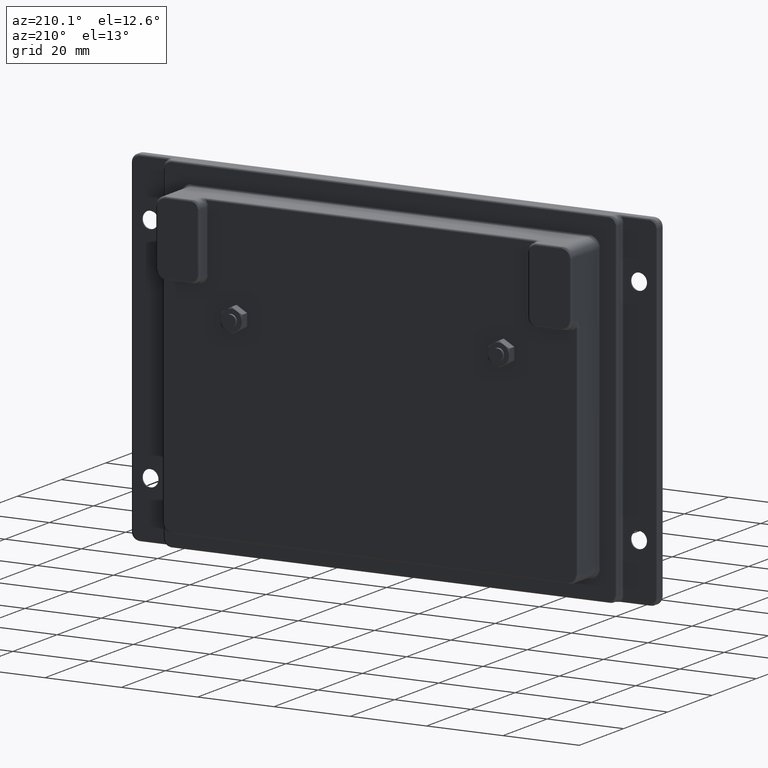
[diagram: clean part render]
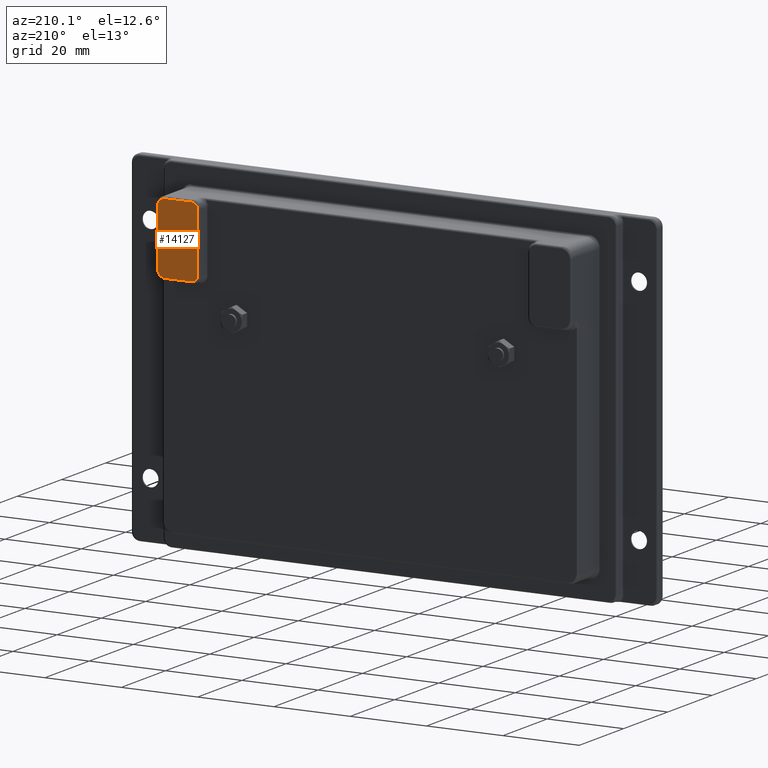
[diagram: same view with one face highlighted and labeled with its STEP entity id]
A machine part, auxiliary view. The second image highlights one B-rep face of the part: STEP entity #14127.
In plain terms, the highlighted face is a freeform B-spline surface patch.
Its self-contained STEP definition (entity closure, byte-faithful):
#13086=CARTESIAN_POINT('',(52.0,10.500000000000000,12.800000000000001));
#13087=VERTEX_POINT('',#13086);
#13101=CARTESIAN_POINT('',(45.0,10.500000000000000,12.800000000000001));
#13102=VERTEX_POINT('',#13101);
#13103=CARTESIAN_POINT('',(45.0,10.500000000000000,12.800000000000001));
#13104=CARTESIAN_POINT('',(52.0,10.500000000000000,12.800000000000001));
#13105=QUASI_UNIFORM_CURVE('',1,(#13103,#13104),.UNSPECIFIED.,.F.,.U.);
#13106=EDGE_CURVE('',#13102,#13087,#13105,.T.);
#13148=CARTESIAN_POINT('',(43.500000000000000,10.500000000000000,11.300000000000001));
#13149=VERTEX_POINT('',#13148);
#13179=CARTESIAN_POINT('',(43.500000000000000,10.500000000000000,11.300000000000001));
#13180=CARTESIAN_POINT('',(43.500000000000000,10.500000000000002,12.799999999999999));
#13181=CARTESIAN_POINT('',(45.0,10.500000000000000,12.800000000000001));
#13189=(BOUNDED_CURVE()B_SPLINE_CURVE(2,(#13179,#13180,#13181),.UNSPECIFIED.,.F.,.U.)CURVE()GEOMETRIC_REPRESENTATION_ITEM()QUASI_UNIFORM_CURVE()RATIONAL_B_SPLINE_CURVE((1.0,0.707106781186548,1.0))REPRESENTATION_ITEM(''));
#13190=EDGE_CURVE('',#13149,#13102,#13189,.T.);
#13214=CARTESIAN_POINT('',(54.0,10.500000000000000,10.800000000000001));
#13215=VERTEX_POINT('',#13214);
#13229=CARTESIAN_POINT('',(52.0,10.500000000000000,12.800000000000001));
#13230=CARTESIAN_POINT('',(54.0,10.500000000000002,12.799999999999999));
#13231=CARTESIAN_POINT('',(54.0,10.500000000000000,10.800000000000001));
#13239=(BOUNDED_CURVE()B_SPLINE_CURVE(2,(#13229,#13230,#13231),.UNSPECIFIED.,.F.,.U.)CURVE()GEOMETRIC_REPRESENTATION_ITEM()QUASI_UNIFORM_CURVE()RATIONAL_B_SPLINE_CURVE((1.0,0.707106781186548,1.0))REPRESENTATION_ITEM(''));
#13240=EDGE_CURVE('',#13087,#13215,#13239,.T.);
#13273=CARTESIAN_POINT('',(43.500000000000000,10.500000000000000,-4.199999999999905));
#13274=VERTEX_POINT('',#13273);
#13296=CARTESIAN_POINT('',(43.500000000000000,10.500000000000000,-4.199999999999905));
#13297=CARTESIAN_POINT('',(43.500000000000000,10.500000000000000,11.300000000000001));
#13298=QUASI_UNIFORM_CURVE('',1,(#13296,#13297),.UNSPECIFIED.,.F.,.U.);
#13299=EDGE_CURVE('',#13274,#13149,#13298,.T.);
#13320=CARTESIAN_POINT('',(54.0,10.500000000000000,-3.699999999999905));
#13321=VERTEX_POINT('',#13320);
#13335=CARTESIAN_POINT('',(54.0,10.500000000000000,10.800000000000001));
#13336=CARTESIAN_POINT('',(54.0,10.500000000000000,-3.699999999999905));
#13337=QUASI_UNIFORM_CURVE('',1,(#13335,#13336),.UNSPECIFIED.,.F.,.U.);
#13338=EDGE_CURVE('',#13215,#13321,#13337,.T.);
#13366=CARTESIAN_POINT('',(45.0,10.500000000000000,-5.699999999999901));
#13367=VERTEX_POINT('',#13366);
#13397=CARTESIAN_POINT('',(45.0,10.500000000000000,-5.699999999999905));
#13398=CARTESIAN_POINT('',(43.500000000000000,10.500000000000002,-5.699999999999904));
#13399=CARTESIAN_POINT('',(43.500000000000000,10.500000000000000,-4.199999999999905));
#13407=(BOUNDED_CURVE()B_SPLINE_CURVE(2,(#13397,#13398,#13399),.UNSPECIFIED.,.F.,.U.)CURVE()GEOMETRIC_REPRESENTATION_ITEM()QUASI_UNIFORM_CURVE()RATIONAL_B_SPLINE_CURVE((1.0,0.707106781186548,1.0))REPRESENTATION_ITEM(''));
#13408=EDGE_CURVE('',#13367,#13274,#13407,.T.);
#13432=CARTESIAN_POINT('',(52.0,10.500000000000000,-5.699999999999901));
#13433=VERTEX_POINT('',#13432);
#13447=CARTESIAN_POINT('',(54.0,10.500000000000000,-3.699999999999905));
#13448=CARTESIAN_POINT('',(54.0,10.500000000000002,-5.699999999999904));
#13449=CARTESIAN_POINT('',(52.0,10.500000000000000,-5.699999999999905));
#13457=(BOUNDED_CURVE()B_SPLINE_CURVE(2,(#13447,#13448,#13449),.UNSPECIFIED.,.F.,.U.)CURVE()GEOMETRIC_REPRESENTATION_ITEM()QUASI_UNIFORM_CURVE()RATIONAL_B_SPLINE_CURVE((1.0,0.707106781186548,1.0))REPRESENTATION_ITEM(''));
#13458=EDGE_CURVE('',#13321,#13433,#13457,.T.);
#13492=CARTESIAN_POINT('',(52.0,10.500000000000000,-5.699999999999901));
#13493=CARTESIAN_POINT('',(45.0,10.500000000000000,-5.699999999999901));
#13494=QUASI_UNIFORM_CURVE('',1,(#13492,#13493),.UNSPECIFIED.,.F.,.U.);
#13495=EDGE_CURVE('',#13433,#13367,#13494,.T.);
#14112=CARTESIAN_POINT('',(42.975525020351029,10.500000000000000,-6.624074790478542));
#14113=CARTESIAN_POINT('',(54.524475261280912,10.500000000000000,-6.624074790478542));
#14114=CARTESIAN_POINT('',(42.975525020351029,10.500000000000000,13.724075452090201));
#14115=CARTESIAN_POINT('',(54.524475261280912,10.500000000000000,13.724075452090201));
#14116=B_SPLINE_SURFACE_WITH_KNOTS('',1,1,((#14112,#14114),(#14113,#14115)),.UNSPECIFIED.,.F.,.F.,.U.,(2,2),(2,2),(0.0,11.548950240929880),(0.0,20.348150242568739),.UNSPECIFIED.);
#14117=ORIENTED_EDGE('',*,*,#13190,.T.);
#14118=ORIENTED_EDGE('',*,*,#13106,.T.);
#14119=ORIENTED_EDGE('',*,*,#13240,.T.);
#14120=ORIENTED_EDGE('',*,*,#13338,.T.);
#14121=ORIENTED_EDGE('',*,*,#13458,.T.);
#14122=ORIENTED_EDGE('',*,*,#13495,.T.);
#14123=ORIENTED_EDGE('',*,*,#13408,.T.);
#14124=ORIENTED_EDGE('',*,*,#13299,.T.);
#14125=EDGE_LOOP('',(#14117,#14118,#14119,#14120,#14121,#14122,#14123,#14124));
#14126=FACE_OUTER_BOUND('',#14125,.T.);
#14127=ADVANCED_FACE('',(#14126),#14116,.F.);